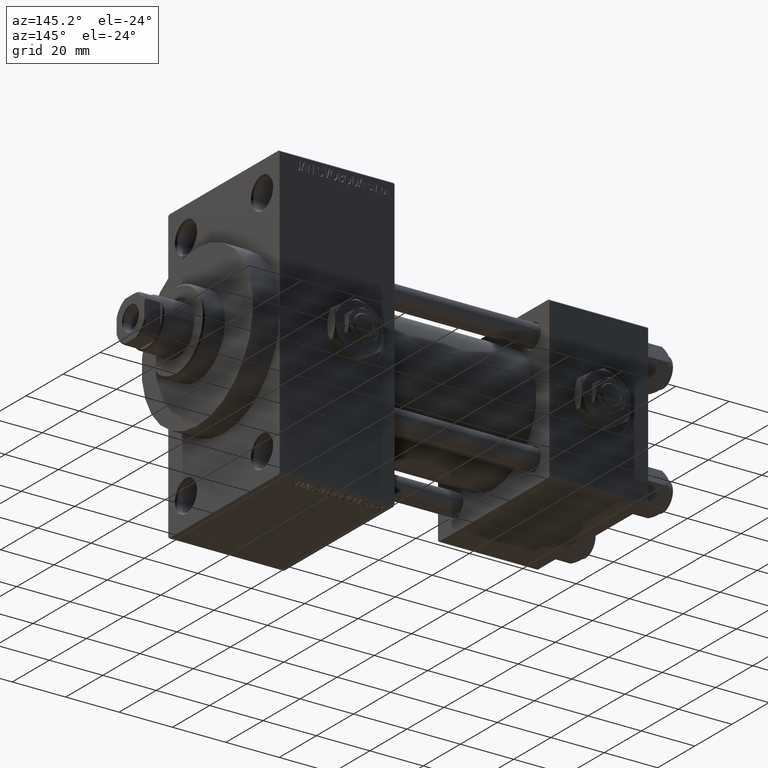
[diagram: clean part render]
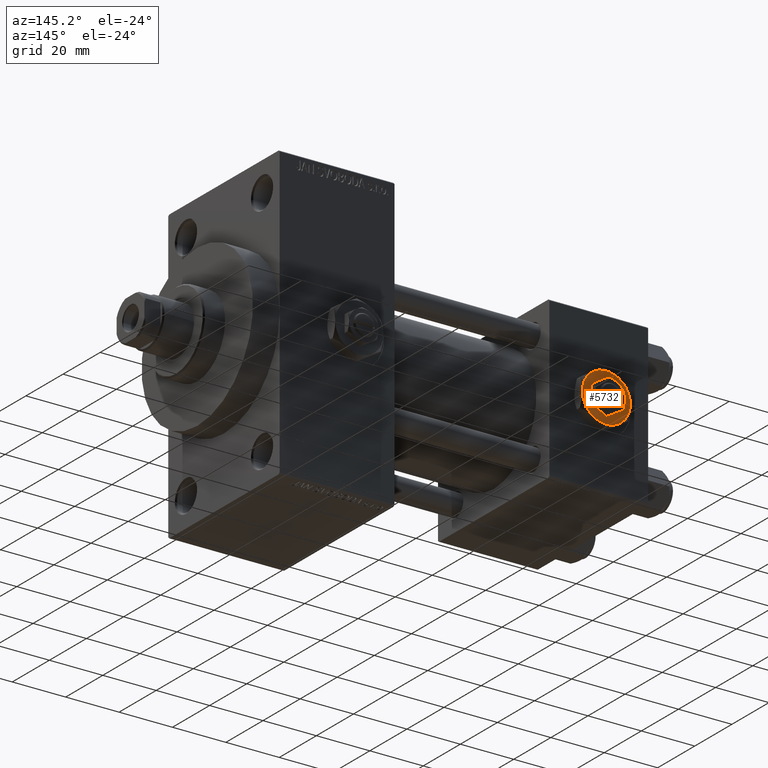
[diagram: same view with one face highlighted and labeled with its STEP entity id]
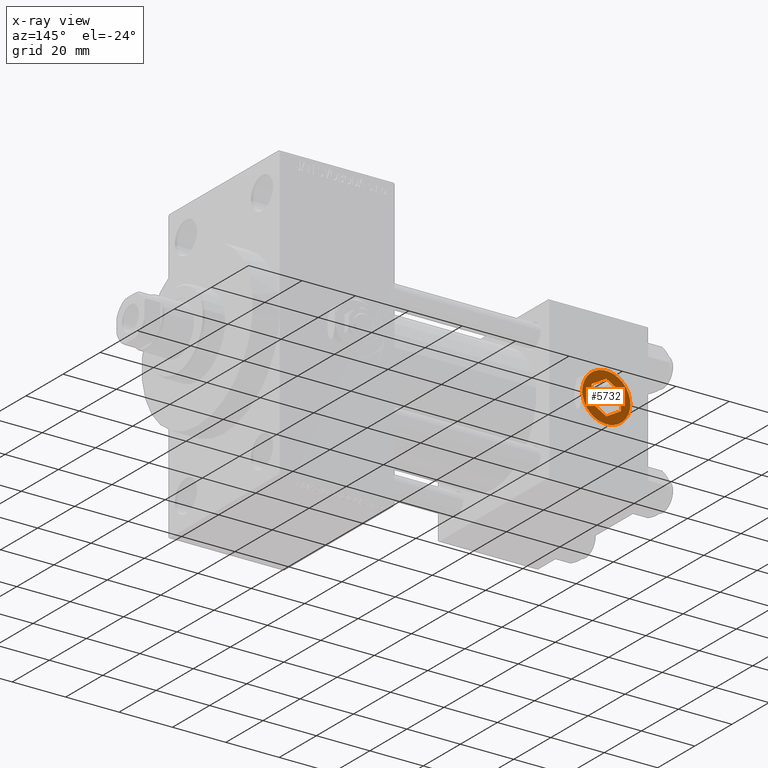
[diagram: x-ray of the same camera — body ghosted, the highlighted face saturated]
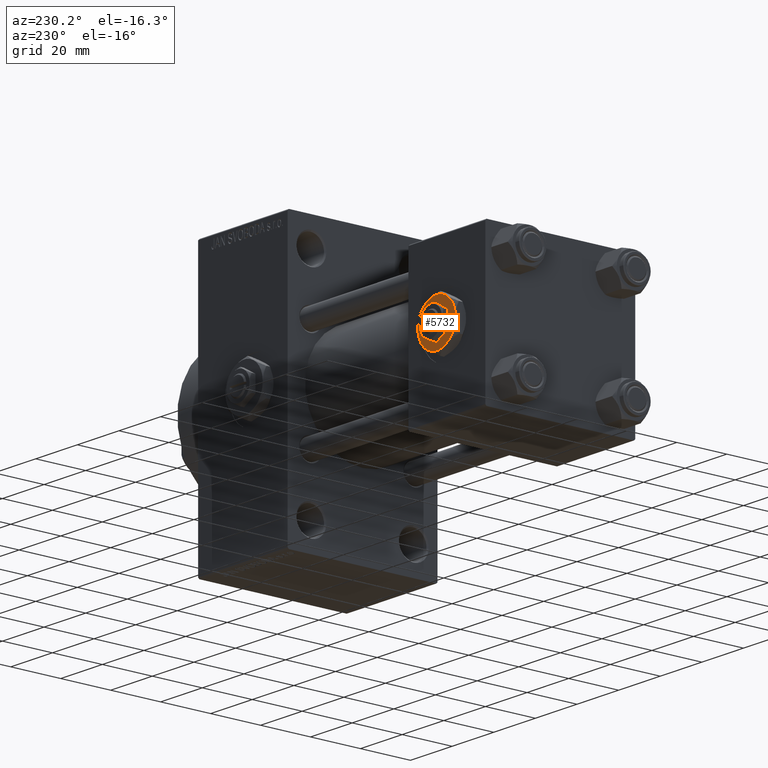
[diagram: same view with one face highlighted and labeled with its STEP entity id]
A machine part, auxiliary view. The second image highlights one B-rep face of the part: STEP entity #5732.
The next image is the same camera in x-ray: the body ghosted, the highlighted face saturated — about 0% of this face is hidden behind the body in this view.
A second angle (auxiliary view) of the same face is appended — the face is thin or edge-on in the first view.
In plain terms, the highlighted planar face has unit normal (0, 1, 0).
Its self-contained STEP definition (entity closure, byte-faithful):
#375 = ORIENTED_EDGE ( 'NONE', *, *, #13567, .T. ) ;
#618 = VERTEX_POINT ( 'NONE', #1003 ) ;
#904 = CARTESIAN_POINT ( 'NONE',  ( 5.499999999999999112, 3.175426480542943075, 4.299999999999999822 ) ) ;
#1003 = CARTESIAN_POINT ( 'NONE',  ( 5.500000000000000888, -3.175426480542940855, 4.299999999999999822 ) ) ;
#1059 = DIRECTION ( 'NONE',  ( 0.000000000000000000, 0.000000000000000000, 1.000000000000000000 ) ) ;
#1107 = ORIENTED_EDGE ( 'NONE', *, *, #6128, .F. ) ;
#1559 = VERTEX_POINT ( 'NONE', #9856 ) ;
#3185 = VERTEX_POINT ( 'NONE', #49315 ) ;
#3511 = VERTEX_POINT ( 'NONE', #31048 ) ;
#3668 = AXIS2_PLACEMENT_3D ( 'NONE', #23507, #1059, #46414 ) ;
#4216 = ORIENTED_EDGE ( 'NONE', *, *, #5299, .T. ) ;
#5299 = EDGE_CURVE ( 'NONE', #15401, #25577, #43477, .T. ) ;
#5363 = CARTESIAN_POINT ( 'NONE',  ( -5.500000000000000000, 3.175426480542941743, 4.299999999999999822 ) ) ;
#5533 = LINE ( 'NONE', #20511, #41131 ) ;
#5606 = DIRECTION ( 'NONE',  ( -2.731481088613017227E-16, 1.000000000000000000, 0.000000000000000000 ) ) ;
#5732 = ADVANCED_FACE ( 'NONE', ( #24443, #43360 ), #29340, .T. ) ;
#6128 = EDGE_CURVE ( 'NONE', #10824, #42109, #18085, .T. ) ;
#6610 = CARTESIAN_POINT ( 'NONE',  ( 0.000000000000000000, 6.350852961085883486, 4.299999999999999822 ) ) ;
#6801 = ORIENTED_EDGE ( 'NONE', *, *, #38613, .F. ) ;
#7614 = DIRECTION ( 'NONE',  ( 1.000000000000000000, 0.000000000000000000, 0.000000000000000000 ) ) ;
#8624 = CARTESIAN_POINT ( 'NONE',  ( -9.000000000000000000, 0.000000000000000000, 4.299999999999999822 ) ) ;
#8790 = CIRCLE ( 'NONE', #24703, 9.000000000000000000 ) ;
#9050 = VECTOR ( 'NONE', #5606, 1000.000000000000000 ) ;
#9516 = LINE ( 'NONE', #43891, #28183 ) ;
#9856 = CARTESIAN_POINT ( 'NONE',  ( 8.999999999999998224, 0.000000000000000000, 4.299999999999999822 ) ) ;
#9993 = CARTESIAN_POINT ( 'NONE',  ( 4.499999999999997335, -7.794228634059948035, 4.299999999999999822 ) ) ;
#10266 = EDGE_CURVE ( 'NONE', #26283, #15401, #45878, .T. ) ;
#10452 = EDGE_CURVE ( 'NONE', #42109, #3511, #39495, .T. ) ;
#10824 = VERTEX_POINT ( 'NONE', #37644 ) ;
#11853 = ORIENTED_EDGE ( 'NONE', *, *, #13358, .T. ) ;
#12770 = DIRECTION ( 'NONE',  ( -0.8660254037844387076, 0.4999999999999999445, 0.000000000000000000 ) ) ;
#13269 = DIRECTION ( 'NONE',  ( 0.8660254037844387076, -0.4999999999999998890, 0.000000000000000000 ) ) ;
#13358 = EDGE_CURVE ( 'NONE', #1559, #33922, #39765, .T. ) ;
#13567 = EDGE_CURVE ( 'NONE', #25577, #21181, #44521, .T. ) ;
#13956 = CARTESIAN_POINT ( 'NONE',  ( -1.343581385738006573E-15, -6.350852961085881709, 4.299999999999999822 ) ) ;
#13994 = DIRECTION ( 'NONE',  ( 1.000000000000000000, 0.000000000000000000, 0.000000000000000000 ) ) ;
#14051 = VERTEX_POINT ( 'NONE', #904 ) ;
#14400 = CARTESIAN_POINT ( 'NONE',  ( 0.000000000000000000, 0.000000000000000000, 4.299999999999999822 ) ) ;
#15401 = VERTEX_POINT ( 'NONE', #8624 ) ;
#15608 = EDGE_LOOP ( 'NONE', ( #1107, #38146, #40024, #16207, #6801, #48914 ) ) ;
#16207 = ORIENTED_EDGE ( 'NONE', *, *, #20915, .F. ) ;
#16279 = CARTESIAN_POINT ( 'NONE',  ( -4.499999999999998224, -7.794228634059947147, 4.299999999999999822 ) ) ;
#16484 = VECTOR ( 'NONE', #29754, 1000.000000000000000 ) ;
#16822 = DIRECTION ( 'NONE',  ( 1.000000000000000000, 0.000000000000000000, 0.000000000000000000 ) ) ;
#17498 = DIRECTION ( 'NONE',  ( 0.000000000000000000, 0.000000000000000000, 1.000000000000000000 ) ) ;
#18085 = LINE ( 'NONE', #6610, #45069 ) ;
#18614 = DIRECTION ( 'NONE',  ( 1.000000000000000000, 0.000000000000000000, 0.000000000000000000 ) ) ;
#18694 = EDGE_CURVE ( 'NONE', #14051, #10824, #5533, .T. ) ;
#19566 = CARTESIAN_POINT ( 'NONE',  ( 0.000000000000000000, 0.000000000000000000, 4.299999999999999822 ) ) ;
#20237 = CIRCLE ( 'NONE', #21032, 9.000000000000000000 ) ;
#20511 = CARTESIAN_POINT ( 'NONE',  ( 5.499999999999999112, 3.175426480542943075, 4.299999999999999822 ) ) ;
#20695 = AXIS2_PLACEMENT_3D ( 'NONE', #19566, #33993, #41959 ) ;
#20915 = EDGE_CURVE ( 'NONE', #3185, #618, #24924, .T. ) ;
#21032 = AXIS2_PLACEMENT_3D ( 'NONE', #44999, #34019, #18614 ) ;
#21181 = VERTEX_POINT ( 'NONE', #9993 ) ;
#23507 = CARTESIAN_POINT ( 'NONE',  ( 0.000000000000000000, 0.000000000000000000, 4.299999999999999822 ) ) ;
#24443 = FACE_OUTER_BOUND ( 'NONE', #30737, .T. ) ;
#24534 = DIRECTION ( 'NONE',  ( 0.000000000000000000, 0.000000000000000000, 1.000000000000000000 ) ) ;
#24703 = AXIS2_PLACEMENT_3D ( 'NONE', #29425, #17498, #13994 ) ;
#24924 = LINE ( 'NONE', #13956, #46822 ) ;
#25186 = ORIENTED_EDGE ( 'NONE', *, *, #37229, .T. ) ;
#25577 = VERTEX_POINT ( 'NONE', #16279 ) ;
#26283 = VERTEX_POINT ( 'NONE', #49073 ) ;
#26554 = DIRECTION ( 'NONE',  ( 0.000000000000000000, 0.000000000000000000, 1.000000000000000000 ) ) ;
#27864 = ORIENTED_EDGE ( 'NONE', *, *, #10266, .T. ) ;
#28183 = VECTOR ( 'NONE', #13269, 1000.000000000000000 ) ;
#29039 = DIRECTION ( 'NONE',  ( -0.8660254037844385966, -0.4999999999999999445, 0.000000000000000000 ) ) ;
#29340 = PLANE ( 'NONE',  #45850 ) ;
#29425 = CARTESIAN_POINT ( 'NONE',  ( 0.000000000000000000, 0.000000000000000000, 4.299999999999999822 ) ) ;
#29754 = DIRECTION ( 'NONE',  ( 0.000000000000000000, -1.000000000000000000, 0.000000000000000000 ) ) ;
#30737 = EDGE_LOOP ( 'NONE', ( #39394, #11853, #25186, #27864, #4216, #375 ) ) ;
#31048 = CARTESIAN_POINT ( 'NONE',  ( -5.500000000000000000, -3.175426480542942187, 4.299999999999999822 ) ) ;
#32153 = DIRECTION ( 'NONE',  ( 0.000000000000000000, 0.000000000000000000, 1.000000000000000000 ) ) ;
#33289 = CARTESIAN_POINT ( 'NONE',  ( 0.000000000000000000, 0.000000000000000000, 4.299999999999999822 ) ) ;
#33922 = VERTEX_POINT ( 'NONE', #37685 ) ;
#33993 = DIRECTION ( 'NONE',  ( 0.000000000000000000, 0.000000000000000000, 1.000000000000000000 ) ) ;
#34019 = DIRECTION ( 'NONE',  ( 0.000000000000000000, 0.000000000000000000, 1.000000000000000000 ) ) ;
#35720 = CARTESIAN_POINT ( 'NONE',  ( 0.000000000000000000, 0.000000000000000000, 4.299999999999999822 ) ) ;
#37229 = EDGE_CURVE ( 'NONE', #33922, #26283, #20237, .T. ) ;
#37356 = AXIS2_PLACEMENT_3D ( 'NONE', #35720, #24534, #16822 ) ;
#37644 = CARTESIAN_POINT ( 'NONE',  ( 0.000000000000000000, 6.350852961085883486, 4.299999999999999822 ) ) ;
#37685 = CARTESIAN_POINT ( 'NONE',  ( 4.500000000000000000, 7.794228634059947147, 4.299999999999999822 ) ) ;
#38146 = ORIENTED_EDGE ( 'NONE', *, *, #18694, .F. ) ;
#38613 = EDGE_CURVE ( 'NONE', #3511, #3185, #9516, .T. ) ;
#39394 = ORIENTED_EDGE ( 'NONE', *, *, #44157, .T. ) ;
#39495 = LINE ( 'NONE', #5363, #16484 ) ;
#39633 = DIRECTION ( 'NONE',  ( 1.000000000000000000, 0.000000000000000000, -0.000000000000000000 ) ) ;
#39765 = CIRCLE ( 'NONE', #20695, 9.000000000000000000 ) ;
#40024 = ORIENTED_EDGE ( 'NONE', *, *, #40438, .F. ) ;
#40339 = AXIS2_PLACEMENT_3D ( 'NONE', #33289, #26554, #7614 ) ;
#40438 = EDGE_CURVE ( 'NONE', #618, #14051, #43467, .T. ) ;
#40991 = CARTESIAN_POINT ( 'NONE',  ( -5.500000000000000000, 3.175426480542941743, 4.299999999999999822 ) ) ;
#41131 = VECTOR ( 'NONE', #12770, 1000.000000000000000 ) ;
#41959 = DIRECTION ( 'NONE',  ( 1.000000000000000000, 0.000000000000000000, 0.000000000000000000 ) ) ;
#42109 = VERTEX_POINT ( 'NONE', #40991 ) ;
#43223 = CARTESIAN_POINT ( 'NONE',  ( 5.500000000000000888, -3.175426480542940855, 4.299999999999999822 ) ) ;
#43360 = FACE_BOUND ( 'NONE', #15608, .T. ) ;
#43467 = LINE ( 'NONE', #43223, #9050 ) ;
#43477 = CIRCLE ( 'NONE', #3668, 9.000000000000000000 ) ;
#43891 = CARTESIAN_POINT ( 'NONE',  ( -5.500000000000000000, -3.175426480542942187, 4.299999999999999822 ) ) ;
#44157 = EDGE_CURVE ( 'NONE', #21181, #1559, #8790, .T. ) ;
#44521 = CIRCLE ( 'NONE', #37356, 9.000000000000000000 ) ;
#44999 = CARTESIAN_POINT ( 'NONE',  ( 0.000000000000000000, 0.000000000000000000, 4.299999999999999822 ) ) ;
#45069 = VECTOR ( 'NONE', #29039, 1000.000000000000114 ) ;
#45850 = AXIS2_PLACEMENT_3D ( 'NONE', #14400, #32153, #39633 ) ;
#45878 = CIRCLE ( 'NONE', #40339, 9.000000000000000000 ) ;
#46414 = DIRECTION ( 'NONE',  ( 1.000000000000000000, 0.000000000000000000, 0.000000000000000000 ) ) ;
#46822 = VECTOR ( 'NONE', #48087, 1000.000000000000000 ) ;
#48087 = DIRECTION ( 'NONE',  ( 0.8660254037844388186, 0.4999999999999997224, 0.000000000000000000 ) ) ;
#48914 = ORIENTED_EDGE ( 'NONE', *, *, #10452, .F. ) ;
#49073 = CARTESIAN_POINT ( 'NONE',  ( -4.500000000000000000, 7.794228634059947147, 4.299999999999999822 ) ) ;
#49315 = CARTESIAN_POINT ( 'NONE',  ( -1.343581385738006573E-15, -6.350852961085881709, 4.299999999999999822 ) ) ;